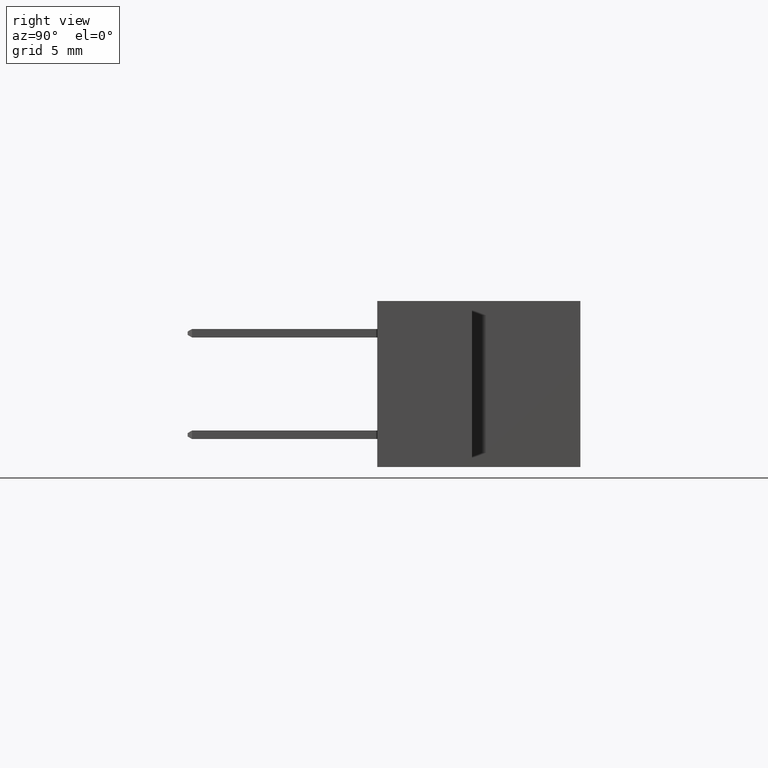
[diagram: clean part render]
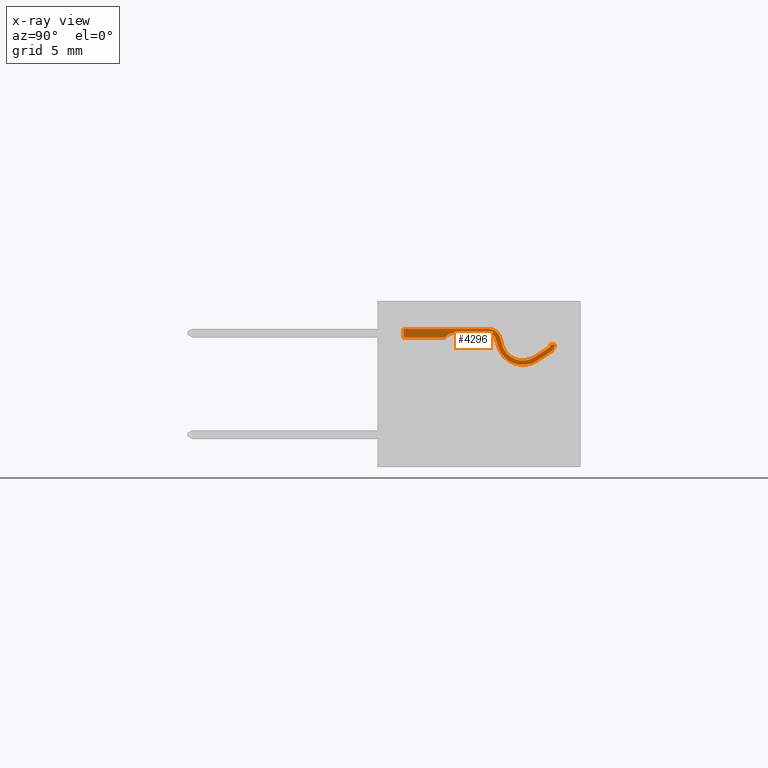
[diagram: x-ray — body ghosted, one internal face saturated and labeled with its STEP entity id]
A machine part, right view, then the same camera in x-ray: the body is ghosted and one INTERNAL B-rep face — a face not visible from any outside direction — is saturated and labeled: STEP entity #4296.
In plain terms, the highlighted planar face has unit normal (-1, -0, -0).
Its self-contained STEP definition (entity closure, byte-faithful):
#85 = DIRECTION ( 'NONE',  ( -1.000000000000000000, 3.227973686377828000E-014, -8.533281040321196400E-014 ) ) ;
#108 = ORIENTED_EDGE ( 'NONE', *, *, #2844, .F. ) ;
#120 = CARTESIAN_POINT ( 'NONE',  ( 0.1597132034356338300, 0.05749999999999241100, 0.02499999999999987000 ) ) ;
#125 = EDGE_CURVE ( 'NONE', #7307, #8875, #6241, .T. ) ;
#142 = EDGE_CURVE ( 'NONE', #5214, #549, #9018, .T. ) ;
#289 = LINE ( 'NONE', #6031, #5275 ) ;
#411 = CARTESIAN_POINT ( 'NONE',  ( 0.1931676058039156800, 0.09559382557855282400, 0.02499999999999987000 ) ) ;
#444 = DIRECTION ( 'NONE',  ( -1.000000000000000000, 3.226592118500722500E-014, -8.530302913286284800E-014 ) ) ;
#527 = DIRECTION ( 'NONE',  ( -0.7071067811865579000, -0.7071067811865371400, -5.996109069847030400E-014 ) ) ;
#549 = VERTEX_POINT ( 'NONE', #8736 ) ;
#583 = VECTOR ( 'NONE', #6894, 39.37007874015748100 ) ;
#585 = VERTEX_POINT ( 'NONE', #6220 ) ;
#707 = CIRCLE ( 'NONE', #6581, 0.02350000000000276900 ) ;
#797 = EDGE_CURVE ( 'NONE', #8875, #5203, #5508, .T. ) ;
#830 = LINE ( 'NONE', #951, #8857 ) ;
#871 = CARTESIAN_POINT ( 'NONE',  ( 0.3300000000000713500, 0.04899999999999248700, 0.02500000000000587900 ) ) ;
#888 = CARTESIAN_POINT ( 'NONE',  ( 0.4582132034356452600, 0.03749999999997581000, 0.02500000000000587900 ) ) ;
#912 = ORIENTED_EDGE ( 'NONE', *, *, #142, .T. ) ;
#951 = CARTESIAN_POINT ( 'NONE',  ( 0.5802132034356947100, 0.03749999999997581000, 0.02500000000000587900 ) ) ;
#1071 = VERTEX_POINT ( 'NONE', #5502 ) ;
#1325 = VECTOR ( 'NONE', #6296, 39.37007874015748100 ) ;
#1442 = EDGE_CURVE ( 'NONE', #549, #8271, #8515, .T. ) ;
#1456 = CARTESIAN_POINT ( 'NONE',  ( 0.3300000000000713500, 0.04899999999999248700, 0.02500000000000587900 ) ) ;
#1498 = ORIENTED_EDGE ( 'NONE', *, *, #9773, .F. ) ;
#1510 = VERTEX_POINT ( 'NONE', #2330 ) ;
#1731 = EDGE_LOOP ( 'NONE', ( #3372, #1826, #8842, #8278, #3690, #3427, #9513, #4479, #8142, #912, #3596, #3432, #5785, #108, #6792, #3304, #1498 ) ) ;
#1826 = ORIENTED_EDGE ( 'NONE', *, *, #3030, .T. ) ;
#1861 = AXIS2_PLACEMENT_3D ( 'NONE', #5335, #7561, #6145 ) ;
#1965 = AXIS2_PLACEMENT_3D ( 'NONE', #1456, #7669, #4607 ) ;
#2202 = VECTOR ( 'NONE', #527, 39.37007874015748100 ) ;
#2330 = CARTESIAN_POINT ( 'NONE',  ( 0.3300000000000713500, 0.01249999999999248200, 0.02500000000000587900 ) ) ;
#2334 = CARTESIAN_POINT ( 'NONE',  ( 0.1332179208366502400, 0.05799999999999258500, 0.02499999999999987000 ) ) ;
#2535 = DIRECTION ( 'NONE',  ( 1.000000000000000000, -3.192141707498494800E-014, 8.533281040321196400E-014 ) ) ;
#2576 = EDGE_CURVE ( 'NONE', #8271, #2761, #2920, .T. ) ;
#2593 = DIRECTION ( 'NONE',  ( 8.533281040322987400E-014, -5.350227227579850900E-016, 1.000000000000000000 ) ) ;
#2671 = DIRECTION ( 'NONE',  ( -8.533281040322987400E-014, 5.350227227579850900E-016, -1.000000000000000000 ) ) ;
#2761 = VERTEX_POINT ( 'NONE', #8139 ) ;
#2844 = EDGE_CURVE ( 'NONE', #9733, #3743, #707, .T. ) ;
#2920 = CIRCLE ( 'NONE', #9285, 0.02172792206136033400 ) ;
#2980 = CARTESIAN_POINT ( 'NONE',  ( 0.4582132034356452600, 0.03749999999997581000, 0.02500000000000587900 ) ) ;
#3030 = EDGE_CURVE ( 'NONE', #3389, #3031, #7677, .T. ) ;
#3031 = VERTEX_POINT ( 'NONE', #5766 ) ;
#3164 = VECTOR ( 'NONE', #8555, 39.37007874015748100 ) ;
#3175 = CARTESIAN_POINT ( 'NONE',  ( 0.09500000000003559800, 0.02499999999999241700, 0.02499999999999987000 ) ) ;
#3208 = AXIS2_PLACEMENT_3D ( 'NONE', #3175, #5610, #85 ) ;
#3258 = DIRECTION ( 'NONE',  ( -1.000000000000000000, 3.227973686377827400E-014, -8.536779821050787200E-014 ) ) ;
#3304 = ORIENTED_EDGE ( 'NONE', *, *, #6000, .F. ) ;
#3324 = CARTESIAN_POINT ( 'NONE',  ( 0.1523078912837023700, 0.06878766370566938300, 0.02499999999999987000 ) ) ;
#3372 = ORIENTED_EDGE ( 'NONE', *, *, #9472, .F. ) ;
#3387 = CIRCLE ( 'NONE', #1861, 0.01350000000000157700 ) ;
#3389 = VERTEX_POINT ( 'NONE', #2334 ) ;
#3427 = ORIENTED_EDGE ( 'NONE', *, *, #4177, .T. ) ;
#3432 = ORIENTED_EDGE ( 'NONE', *, *, #2576, .T. ) ;
#3529 = FACE_OUTER_BOUND ( 'NONE', #1731, .T. ) ;
#3555 = CARTESIAN_POINT ( 'NONE',  ( 0.2280000000000693100, 0.04249999999999243300, 0.02499999999999987000 ) ) ;
#3596 = ORIENTED_EDGE ( 'NONE', *, *, #1442, .T. ) ;
#3644 = LINE ( 'NONE', #6941, #3164 ) ;
#3689 = CARTESIAN_POINT ( 'NONE',  ( 0.3073628610515606900, 0.04269048811508223400, 0.02499999999999987000 ) ) ;
#3690 = ORIENTED_EDGE ( 'NONE', *, *, #797, .T. ) ;
#3743 = VERTEX_POINT ( 'NONE', #5246 ) ;
#3838 = EDGE_CURVE ( 'NONE', #1071, #9733, #3644, .T. ) ;
#3945 = EDGE_CURVE ( 'NONE', #5214, #585, #830, .T. ) ;
#4093 = CARTESIAN_POINT ( 'NONE',  ( 0.3300000000000713500, 0.02549999999999245200, 0.02500000000000587900 ) ) ;
#4120 = VERTEX_POINT ( 'NONE', #9925 ) ;
#4177 = EDGE_CURVE ( 'NONE', #5203, #8473, #10076, .T. ) ;
#4188 = DIRECTION ( 'NONE',  ( -8.533281040322987400E-014, 5.350227227579850900E-016, -1.000000000000000000 ) ) ;
#4296 = ADVANCED_FACE ( 'NONE', ( #3529 ), #6315, .F. ) ;
#4423 = VECTOR ( 'NONE', #3258, 39.37007874015748100 ) ;
#4479 = ORIENTED_EDGE ( 'NONE', *, *, #5810, .T. ) ;
#4521 = CARTESIAN_POINT ( 'NONE',  ( 0.2891684392864723500, 0.05954910658262221900, 0.02499999999999987000 ) ) ;
#4607 = DIRECTION ( 'NONE',  ( 1.000000000000000000, -3.227697115801573600E-014, 8.537024980199814600E-014 ) ) ;
#4638 = EDGE_CURVE ( 'NONE', #8473, #1510, #9580, .T. ) ;
#4770 = DIRECTION ( 'NONE',  ( 3.227973686378255900E-014, -1.000000000000000000, 5.350227227577681600E-016 ) ) ;
#4801 = CARTESIAN_POINT ( 'NONE',  ( 0.3300000000000713500, 0.01249999999999248200, 0.02500000000000587900 ) ) ;
#5203 = VERTEX_POINT ( 'NONE', #6335 ) ;
#5214 = VERTEX_POINT ( 'NONE', #8844 ) ;
#5246 = CARTESIAN_POINT ( 'NONE',  ( 0.3300000000000713500, 0.02549999999999245200, 0.02500000000000587900 ) ) ;
#5275 = VECTOR ( 'NONE', #8524, 39.37007874015747400 ) ;
#5335 = CARTESIAN_POINT ( 'NONE',  ( 0.1597132034356338300, 0.05749999999999241100, 0.02499999999999987000 ) ) ;
#5377 = CARTESIAN_POINT ( 'NONE',  ( 0.1462132034356338200, 0.05799999999999258500, 0.02499999999999987000 ) ) ;
#5441 = DIRECTION ( 'NONE',  ( -8.533281040322987400E-014, 5.350227227579850900E-016, -1.000000000000000000 ) ) ;
#5502 = CARTESIAN_POINT ( 'NONE',  ( 0.3016911118962867200, 0.06303947485938114800, 0.02499999999999987000 ) ) ;
#5508 = CIRCLE ( 'NONE', #8312, 0.06350000000000739800 ) ;
#5610 = DIRECTION ( 'NONE',  ( 8.533281040321197600E-014, 5.350227227524760800E-016, -1.000000000000000000 ) ) ;
#5766 = CARTESIAN_POINT ( 'NONE',  ( 0.1462224658724017600, 0.05799999999999258500, 0.02499999999999987000 ) ) ;
#5785 = ORIENTED_EDGE ( 'NONE', *, *, #5836, .F. ) ;
#5810 = EDGE_CURVE ( 'NONE', #1510, #585, #7058, .T. ) ;
#5836 = EDGE_CURVE ( 'NONE', #3743, #2761, #7419, .T. ) ;
#6000 = EDGE_CURVE ( 'NONE', #4120, #1071, #8507, .T. ) ;
#6021 = CIRCLE ( 'NONE', #7224, 0.02650000000000308400 ) ;
#6031 = CARTESIAN_POINT ( 'NONE',  ( 0.1451768499522128600, 0.07965726579261807300, 0.02499999999999987000 ) ) ;
#6145 = DIRECTION ( 'NONE',  ( -1.000000000000000000, 3.225098325853267200E-014, -8.537024980199826000E-014 ) ) ;
#6206 = EDGE_CURVE ( 'NONE', #3031, #7307, #3387, .T. ) ;
#6220 = CARTESIAN_POINT ( 'NONE',  ( 0.5802132034356947100, 0.01249999999997614300, 0.02500000000000587900 ) ) ;
#6241 = LINE ( 'NONE', #3324, #8913 ) ;
#6296 = DIRECTION ( 'NONE',  ( 1.000000000000000000, -3.192141707498494800E-014, 8.533281040321196400E-014 ) ) ;
#6315 = PLANE ( 'NONE',  #3208 ) ;
#6335 = CARTESIAN_POINT ( 'NONE',  ( 0.2891684392864723500, 0.05954910658262221900, 0.02499999999999987000 ) ) ;
#6345 = CARTESIAN_POINT ( 'NONE',  ( 0.1523078912837023700, 0.06878766370566938300, 0.02499999999999987000 ) ) ;
#6581 = AXIS2_PLACEMENT_3D ( 'NONE', #871, #2593, #8782 ) ;
#6671 = CARTESIAN_POINT ( 'NONE',  ( 0.1451768499522128600, 0.07965726579261807300, 0.02499999999999987000 ) ) ;
#6792 = ORIENTED_EDGE ( 'NONE', *, *, #3838, .F. ) ;
#6894 = DIRECTION ( 'NONE',  ( 0.2684898674430285500, -0.9632825084472492700, 2.342637298415269100E-014 ) ) ;
#6941 = CARTESIAN_POINT ( 'NONE',  ( 0.3016911118962867200, 0.06303947485938114800, 0.02499999999999987000 ) ) ;
#7026 = DIRECTION ( 'NONE',  ( -1.000000000000000000, 3.221518860452766000E-014, -8.537024980199828500E-014 ) ) ;
#7058 = LINE ( 'NONE', #4801, #9988 ) ;
#7067 = DIRECTION ( 'NONE',  ( 1.000000000000000000, -3.227973686377828000E-014, 8.533281040321196400E-014 ) ) ;
#7082 = AXIS2_PLACEMENT_3D ( 'NONE', #7300, #2671, #8084 ) ;
#7198 = VECTOR ( 'NONE', #7067, 39.37007874015748100 ) ;
#7224 = AXIS2_PLACEMENT_3D ( 'NONE', #120, #7783, #7026 ) ;
#7300 = CARTESIAN_POINT ( 'NONE',  ( 0.2280000000000693100, 0.04249999999999243300, 0.02499999999999987000 ) ) ;
#7307 = VERTEX_POINT ( 'NONE', #6345 ) ;
#7373 = CARTESIAN_POINT ( 'NONE',  ( 0.4525771644663245100, 0.03186396103065710500, 0.02500000000000587900 ) ) ;
#7419 = LINE ( 'NONE', #4093, #1325 ) ;
#7561 = DIRECTION ( 'NONE',  ( -8.533281040322987400E-014, 5.350227227579850900E-016, -1.000000000000000000 ) ) ;
#7669 = DIRECTION ( 'NONE',  ( 8.533281040322987400E-014, -5.350227227579850900E-016, 1.000000000000000000 ) ) ;
#7677 = LINE ( 'NONE', #5377, #7198 ) ;
#7783 = DIRECTION ( 'NONE',  ( -8.533281040322987400E-014, 5.350227227579850900E-016, -1.000000000000000000 ) ) ;
#8084 = DIRECTION ( 'NONE',  ( -1.000000000000000000, 3.225098325853268500E-014, -8.531445225310809000E-014 ) ) ;
#8139 = CARTESIAN_POINT ( 'NONE',  ( 0.4372132034356452900, 0.02549999999998234600, 0.02500000000000587900 ) ) ;
#8142 = ORIENTED_EDGE ( 'NONE', *, *, #3945, .F. ) ;
#8271 = VERTEX_POINT ( 'NONE', #7373 ) ;
#8278 = ORIENTED_EDGE ( 'NONE', *, *, #125, .T. ) ;
#8312 = AXIS2_PLACEMENT_3D ( 'NONE', #3555, #4188, #444 ) ;
#8473 = VERTEX_POINT ( 'NONE', #9816 ) ;
#8507 = CIRCLE ( 'NONE', #7082, 0.07650000000000890800 ) ;
#8515 = LINE ( 'NONE', #2980, #2202 ) ;
#8524 = DIRECTION ( 'NONE',  ( 0.8361232374575888700, 0.5485416408837533500, 7.105526345344100000E-014 ) ) ;
#8551 = CARTESIAN_POINT ( 'NONE',  ( 0.4372132034356452900, 0.04722792206134001500, 0.02500000000000587900 ) ) ;
#8555 = DIRECTION ( 'NONE',  ( 0.2684898674430285500, -0.9632825084472492700, 2.342637298415269100E-014 ) ) ;
#8597 = VERTEX_POINT ( 'NONE', #6671 ) ;
#8673 = DIRECTION ( 'NONE',  ( 0.8361232374575888700, 0.5485416408837533500, 7.105526345344100000E-014 ) ) ;
#8736 = CARTESIAN_POINT ( 'NONE',  ( 0.4582132034356452600, 0.03749999999997581000, 0.02500000000000587900 ) ) ;
#8782 = DIRECTION ( 'NONE',  ( 1.000000000000000000, -3.233171162713973100E-014, 8.537024980199817100E-014 ) ) ;
#8842 = ORIENTED_EDGE ( 'NONE', *, *, #6206, .T. ) ;
#8844 = CARTESIAN_POINT ( 'NONE',  ( 0.5802132034356947100, 0.03749999999997581000, 0.02500000000000587900 ) ) ;
#8857 = VECTOR ( 'NONE', #4770, 39.37007874015748100 ) ;
#8875 = VERTEX_POINT ( 'NONE', #411 ) ;
#8913 = VECTOR ( 'NONE', #8673, 39.37007874015747400 ) ;
#9018 = LINE ( 'NONE', #888, #4423 ) ;
#9285 = AXIS2_PLACEMENT_3D ( 'NONE', #8551, #5441, #9410 ) ;
#9410 = DIRECTION ( 'NONE',  ( 1.000000000000000000, -3.221826948750753500E-014, 8.526054242425774800E-014 ) ) ;
#9472 = EDGE_CURVE ( 'NONE', #3389, #8597, #6021, .T. ) ;
#9513 = ORIENTED_EDGE ( 'NONE', *, *, #4638, .T. ) ;
#9580 = CIRCLE ( 'NONE', #1965, 0.03650000000000430700 ) ;
#9733 = VERTEX_POINT ( 'NONE', #3689 ) ;
#9773 = EDGE_CURVE ( 'NONE', #8597, #4120, #289, .T. ) ;
#9816 = CARTESIAN_POINT ( 'NONE',  ( 0.2948401884417463100, 0.03920011983832330500, 0.02499999999999987000 ) ) ;
#9925 = CARTESIAN_POINT ( 'NONE',  ( 0.1860365644724261700, 0.1064634276655010300, 0.02499999999999987000 ) ) ;
#9988 = VECTOR ( 'NONE', #2535, 39.37007874015748100 ) ;
#10076 = LINE ( 'NONE', #4521, #583 ) ;